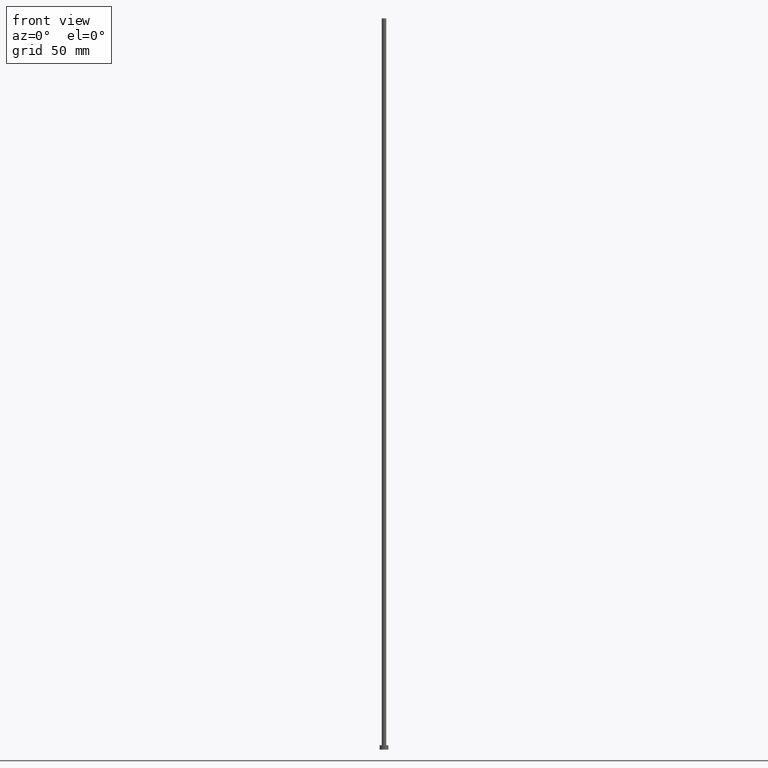
[diagram: clean part render]
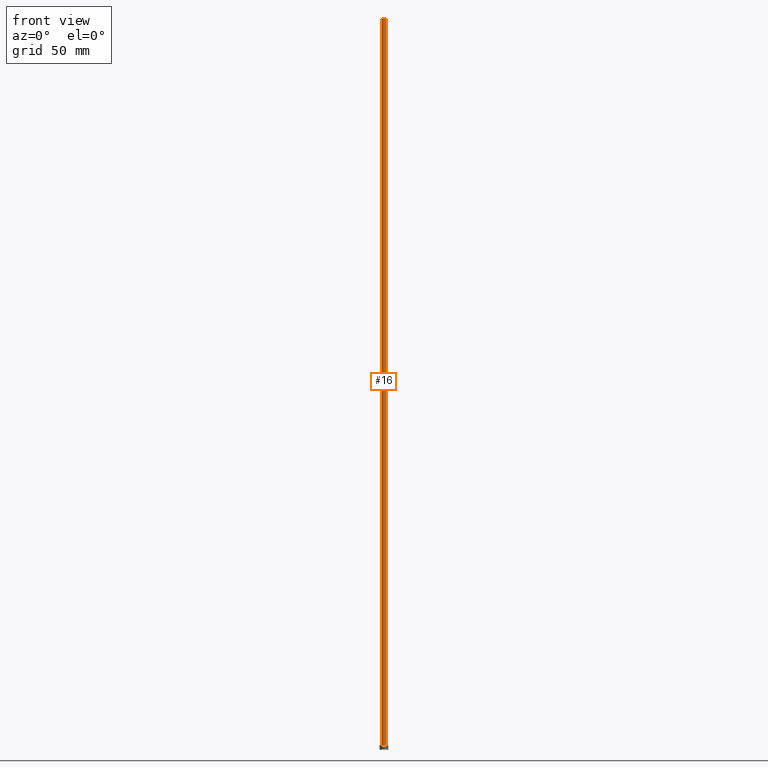
[diagram: same view with one face highlighted and labeled with its STEP entity id]
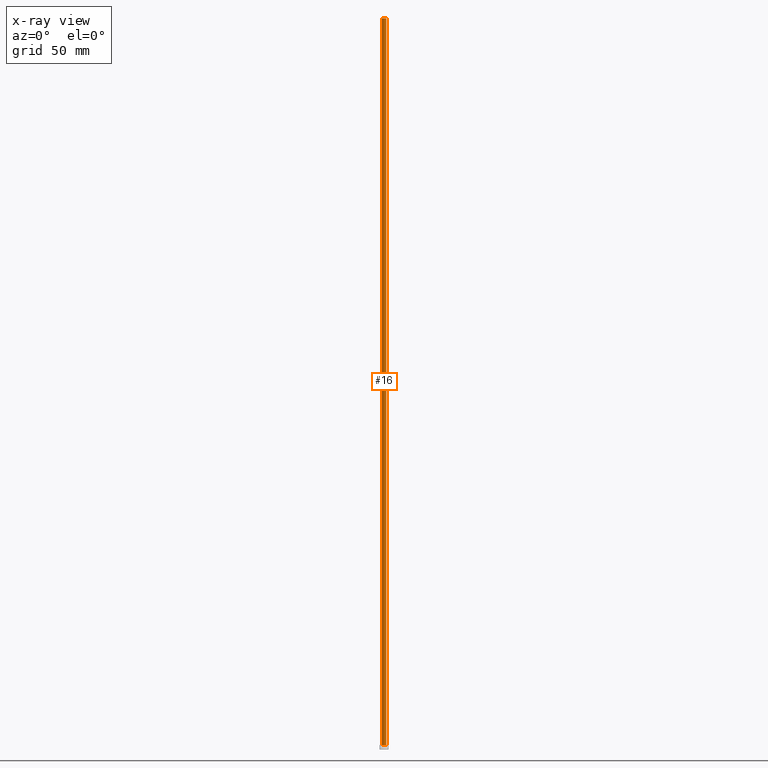
[diagram: x-ray of the same camera — body ghosted, the highlighted face saturated]
A machine part, front view. The second image highlights one B-rep face of the part: STEP entity #16.
The next image is the same camera in x-ray: the body ghosted, the highlighted face saturated — about 0% of this face is hidden behind the body in this view.
In plain terms, the highlighted cylindrical surface (edge-blend (fillet) strip) has radius 1.5 mm, axis along (-0, -0, -1).
Its self-contained STEP definition (entity closure, byte-faithful):
#2 = AXIS2_PLACEMENT_3D ( 'NONE', #61, #142, #164 ) ;
#4 = LINE ( 'NONE', #91, #53 ) ;
#16 = ADVANCED_FACE ( 'NONE', ( #232 ), #227, .T. ) ;
#19 = VERTEX_POINT ( 'NONE', #101 ) ;
#25 = EDGE_CURVE ( 'NONE', #43, #136, #4, .T. ) ;
#29 = CARTESIAN_POINT ( 'NONE',  ( 1.500000000000000222, 1.836970198721029934E-16, 3.000000000000000000 ) ) ;
#41 = ORIENTED_EDGE ( 'NONE', *, *, #217, .F. ) ;
#43 = VERTEX_POINT ( 'NONE', #63 ) ;
#49 = DIRECTION ( 'NONE',  ( 1.000000000000000000, 0.000000000000000000, 0.000000000000000000 ) ) ;
#50 = AXIS2_PLACEMENT_3D ( 'NONE', #160, #60, #49 ) ;
#51 = LINE ( 'NONE', #221, #169 ) ;
#53 = VECTOR ( 'NONE', #167, 1000.000000000000000 ) ;
#56 = ORIENTED_EDGE ( 'NONE', *, *, #173, .T. ) ;
#58 = ORIENTED_EDGE ( 'NONE', *, *, #25, .F. ) ;
#60 = DIRECTION ( 'NONE',  ( 0.000000000000000000, 0.000000000000000000, 1.000000000000000000 ) ) ;
#61 = CARTESIAN_POINT ( 'NONE',  ( 0.000000000000000000, 0.000000000000000000, 500.0000000000000000 ) ) ;
#63 = CARTESIAN_POINT ( 'NONE',  ( 1.500000000000000222, 1.836970198721029934E-16, 500.0000000000000000 ) ) ;
#74 = EDGE_CURVE ( 'NONE', #117, #19, #51, .T. ) ;
#91 = CARTESIAN_POINT ( 'NONE',  ( 1.500000000000000222, 1.836970198721029934E-16, 500.0000000000000000 ) ) ;
#98 = ORIENTED_EDGE ( 'NONE', *, *, #74, .T. ) ;
#101 = CARTESIAN_POINT ( 'NONE',  ( -1.500000000000000222, 0.000000000000000000, 3.000000000000000000 ) ) ;
#103 = CARTESIAN_POINT ( 'NONE',  ( -1.500000000000000222, 0.000000000000000000, 500.0000000000000000 ) ) ;
#117 = VERTEX_POINT ( 'NONE', #103 ) ;
#118 = DIRECTION ( 'NONE',  ( -0.000000000000000000, -0.000000000000000000, -1.000000000000000000 ) ) ;
#119 = AXIS2_PLACEMENT_3D ( 'NONE', #137, #118, #212 ) ;
#136 = VERTEX_POINT ( 'NONE', #29 ) ;
#137 = CARTESIAN_POINT ( 'NONE',  ( 0.000000000000000000, 0.000000000000000000, 500.0000000000000000 ) ) ;
#142 = DIRECTION ( 'NONE',  ( 0.000000000000000000, 0.000000000000000000, 1.000000000000000000 ) ) ;
#159 = CIRCLE ( 'NONE', #50, 1.500000000000000222 ) ;
#160 = CARTESIAN_POINT ( 'NONE',  ( 0.000000000000000000, 0.000000000000000000, 3.000000000000000000 ) ) ;
#164 = DIRECTION ( 'NONE',  ( 1.000000000000000000, 0.000000000000000000, 0.000000000000000000 ) ) ;
#167 = DIRECTION ( 'NONE',  ( -0.000000000000000000, -0.000000000000000000, -1.000000000000000000 ) ) ;
#169 = VECTOR ( 'NONE', #185, 1000.000000000000000 ) ;
#173 = EDGE_CURVE ( 'NONE', #19, #136, #159, .T. ) ;
#177 = EDGE_LOOP ( 'NONE', ( #58, #41, #98, #56 ) ) ;
#185 = DIRECTION ( 'NONE',  ( -0.000000000000000000, -0.000000000000000000, -1.000000000000000000 ) ) ;
#212 = DIRECTION ( 'NONE',  ( -1.000000000000000000, 0.000000000000000000, 0.000000000000000000 ) ) ;
#217 = EDGE_CURVE ( 'NONE', #117, #43, #248, .T. ) ;
#221 = CARTESIAN_POINT ( 'NONE',  ( -1.500000000000000222, 0.000000000000000000, 500.0000000000000000 ) ) ;
#227 = CYLINDRICAL_SURFACE ( 'NONE', #119, 1.500000000000000222 ) ;
#232 = FACE_OUTER_BOUND ( 'NONE', #177, .T. ) ;
#248 = CIRCLE ( 'NONE', #2, 1.500000000000000222 ) ;